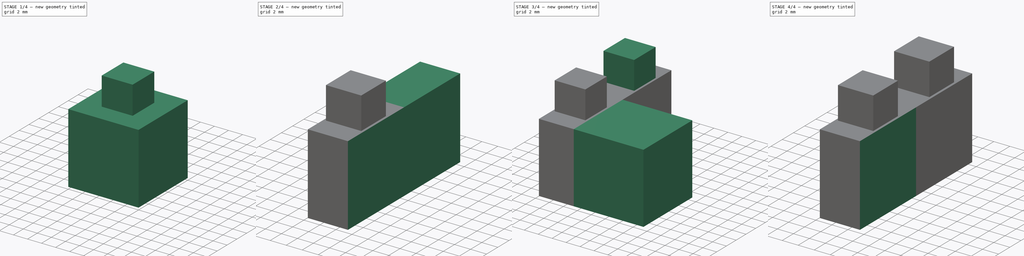
[diagram: build sequence overview — one tinted view per stage of 4, left to right]
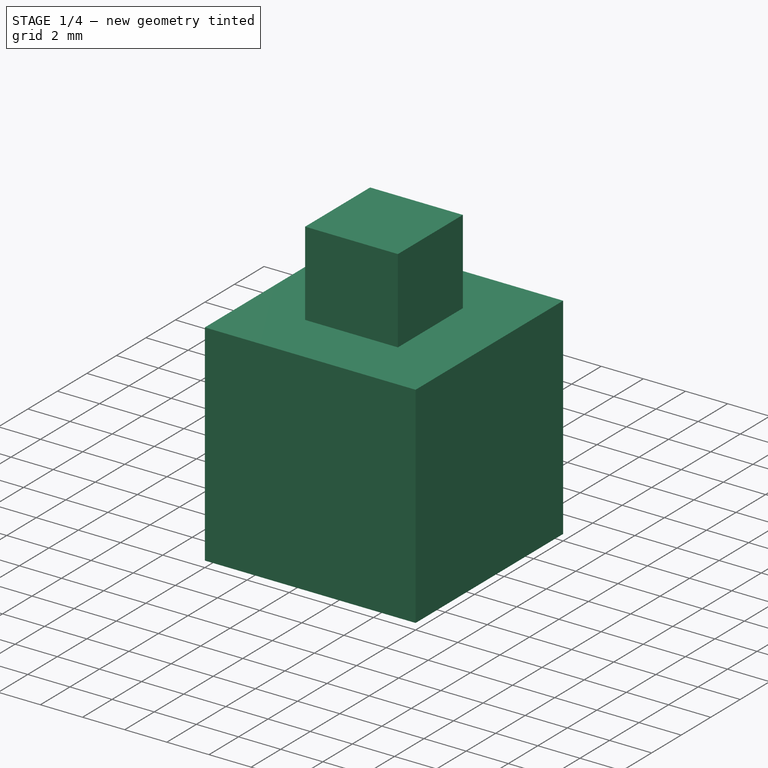
[diagram: stage 1 of 4 — iso view after this stage's code; geometry added in this stage tinted green]
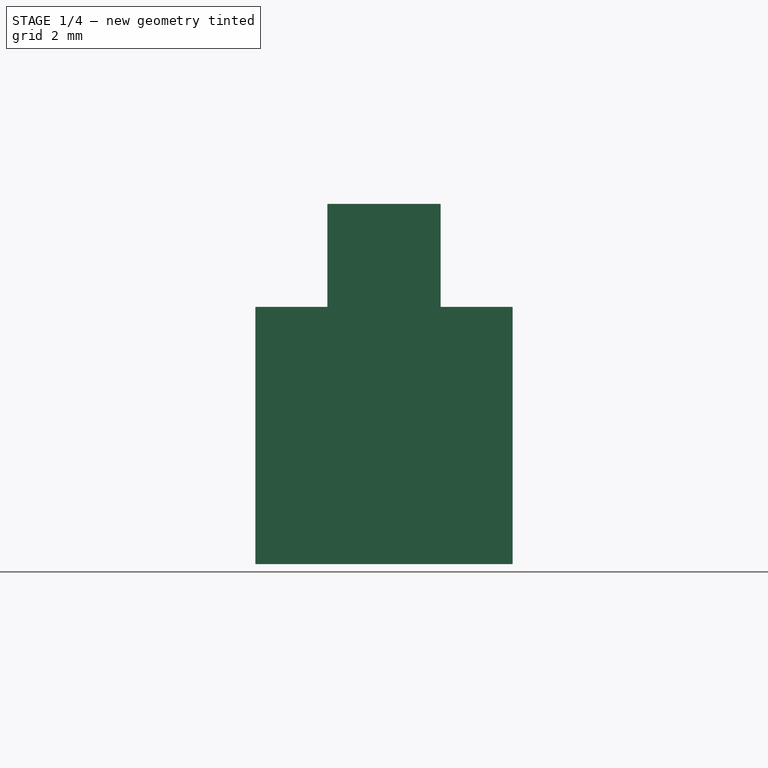
[diagram: stage 1 of 4 — front view after this stage's code; geometry added in this stage tinted green]
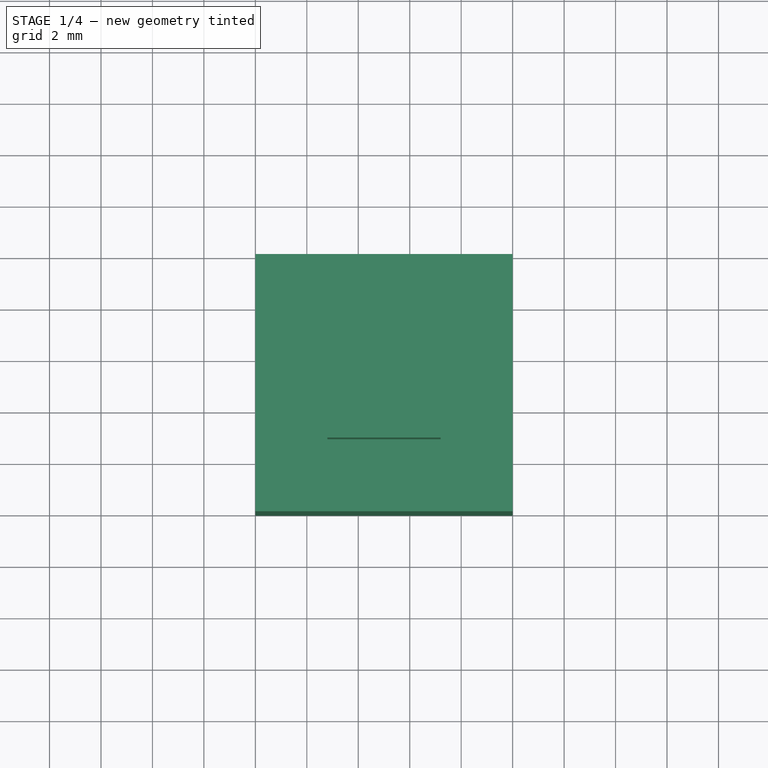
[diagram: stage 1 of 4 — top view after this stage's code; geometry added in this stage tinted green]
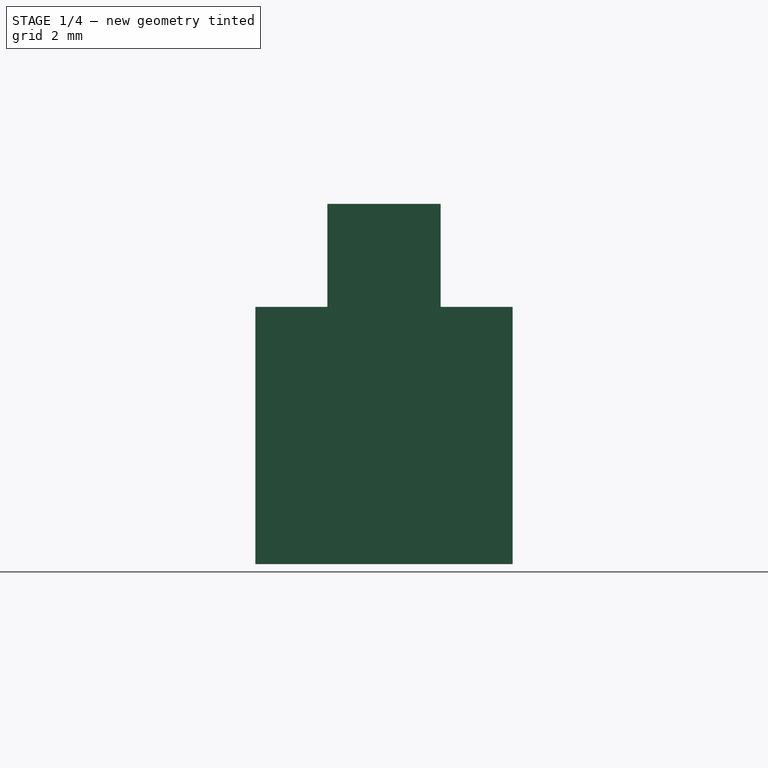
[diagram: stage 1 of 4 — right view after this stage's code; geometry added in this stage tinted green]
FCSTD DOCUMENT  (FreeCAD 0.18.4R)
Label: wall-block-2-pieces-v1
License: All rights reserved
LicenseURL: http://en.wikipedia.org/wiki/All_rights_reserved
objects: PartDesign::Pad×5, PartDesign::Pocket×4, Sketcher::SketchObject×2, Part::Box×1, PartDesign::FeatureBase×1, PartDesign::Body×1
note: 23 computed .brp shape members not serialized (recipe doc carries the construction recipe); baked Part::Feature solids carry a one-line shape summary decoded from their .brp

FEATURE [Part::Box] Box  label="Cube"
  AttacherType = Attacher::AttachEngine3D
  Height = 10
  Length = 10
  Width = 10
FEATURE [PartDesign::FeatureBase] BaseFeature
  BaseFeature = -> Box
FEATURE [Sketcher::SketchObject] Sketch
  MapMode = 5
  Placement = pos=(0,0,10) rot=(0,0,1;0rad)
  Support = -> [BaseFeature]
  sketch-geometry (4):
    g0: LineSegment StartX=2.8 StartY=2.8 StartZ=0 EndX=7.2 EndY=2.8 EndZ=0
    g1: LineSegment StartX=7.2 StartY=2.8 StartZ=0 EndX=7.2 EndY=7.2 EndZ=0
    g2: LineSegment StartX=7.2 StartY=7.2 StartZ=0 EndX=2.8 EndY=7.2 EndZ=0
    g3: LineSegment StartX=2.8 StartY=7.2 StartZ=0 EndX=2.8 EndY=2.8 EndZ=0
  constraints (12):
    c: Coincident(g0,g1)
    c: Coincident(g1,g2)
    c: Coincident(g2,g3)
    c: Coincident(g3,g0)
    c: Horizontal(g0)
    c: Horizontal(g2)
    c: Vertical(g1)
    c: Vertical(g3)
    c: DistanceX(g2,g2) = 4.4
    c: DistanceY(g3,g3) = 4.4
    c: DistanceX(g-1,g0) = 2.8
    c: DistanceY(g-1,g0) = 2.8
FEATURE [PartDesign::Pad] Pad
  BaseFeature = -> BaseFeature
  Length = 4
  Length2 = 100
  Profile = -> Sketch
  Type = 0
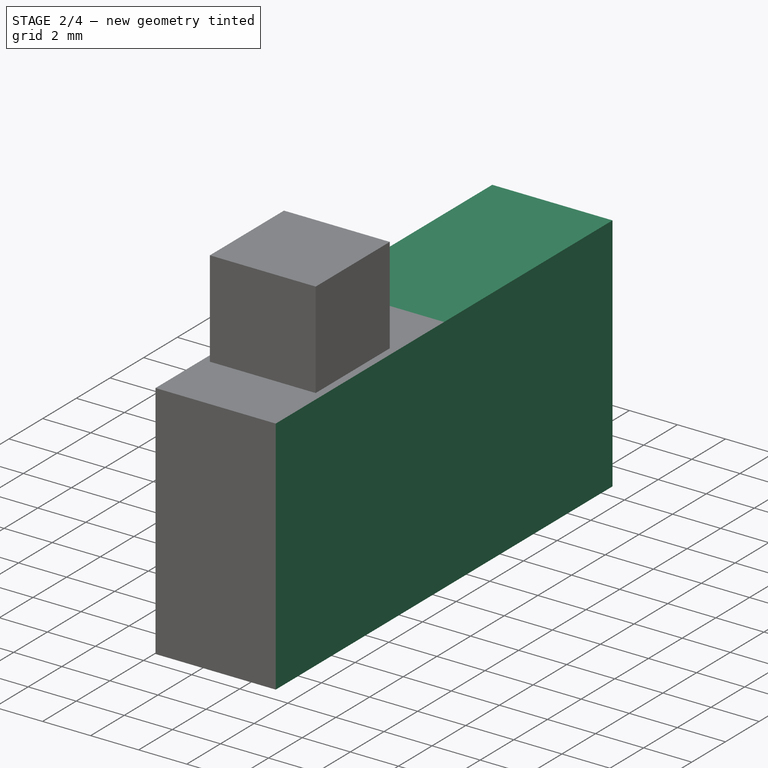
[diagram: stage 2 of 4 — iso view after this stage's code; geometry added in this stage tinted green]
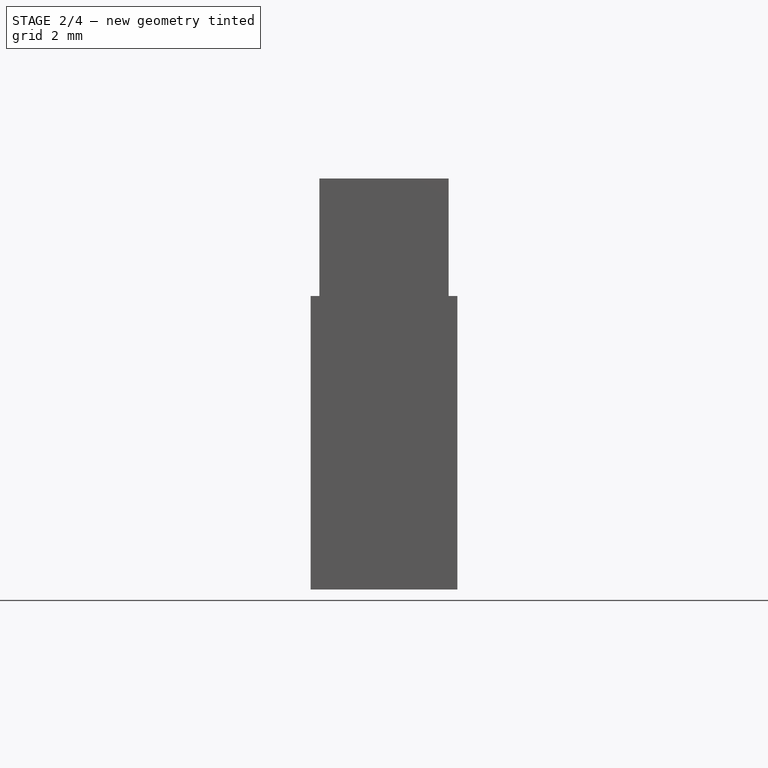
[diagram: stage 2 of 4 — front view after this stage's code; geometry added in this stage tinted green]
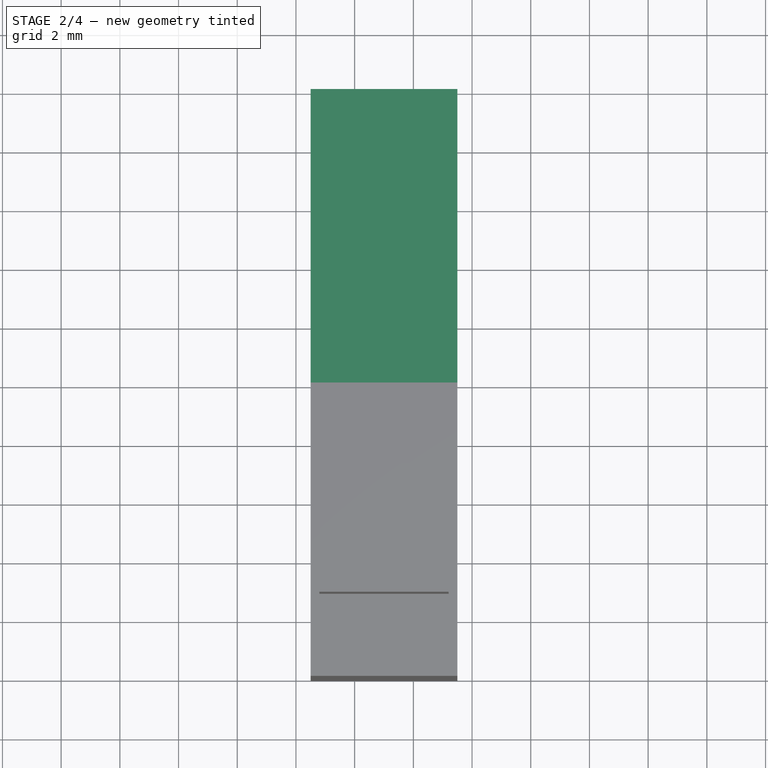
[diagram: stage 2 of 4 — top view after this stage's code; geometry added in this stage tinted green]
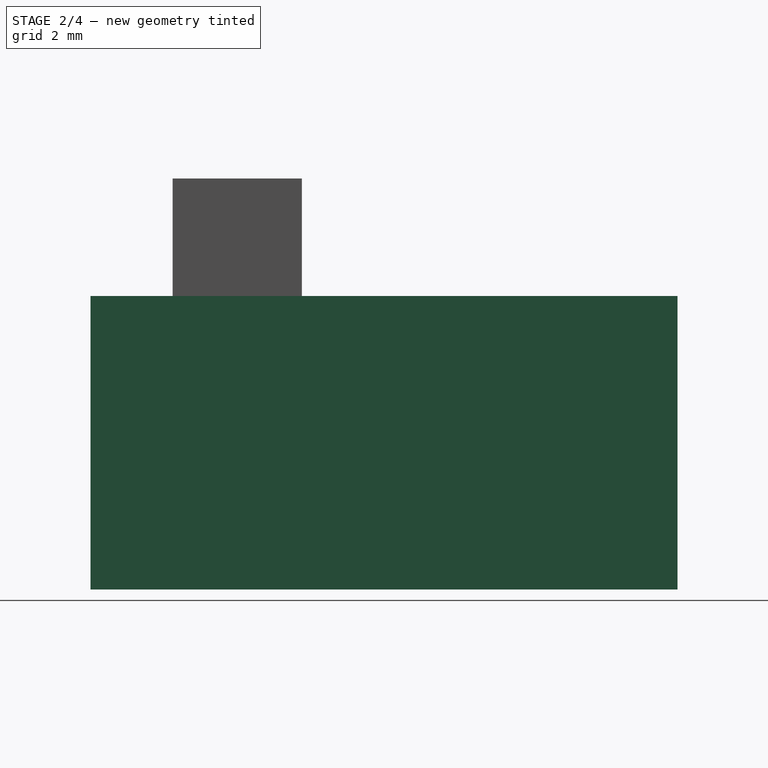
[diagram: stage 2 of 4 — right view after this stage's code; geometry added in this stage tinted green]
FEATURE [PartDesign::Pocket] Pocket
  BaseFeature = -> Pad
  Length = 2.5
  Length2 = 100
  Profile = -> Pad [Face1]
  Type = 0
FEATURE [PartDesign::Pocket] Pocket001
  BaseFeature = -> Pocket
  Length = 2.5
  Length2 = 100
  Profile = -> Pocket [Face3]
  Type = 0
FEATURE [PartDesign::Pad] Pad001
  BaseFeature = -> Pocket001
  Length = 10
  Length2 = 100
  Profile = -> Pocket001 [Face6]
  Type = 0
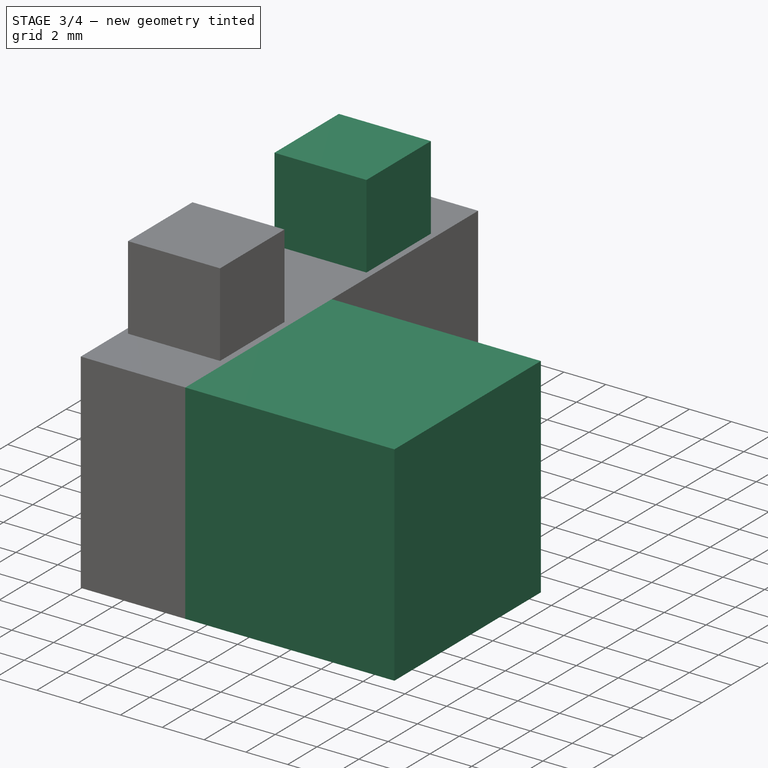
[diagram: stage 3 of 4 — iso view after this stage's code; geometry added in this stage tinted green]
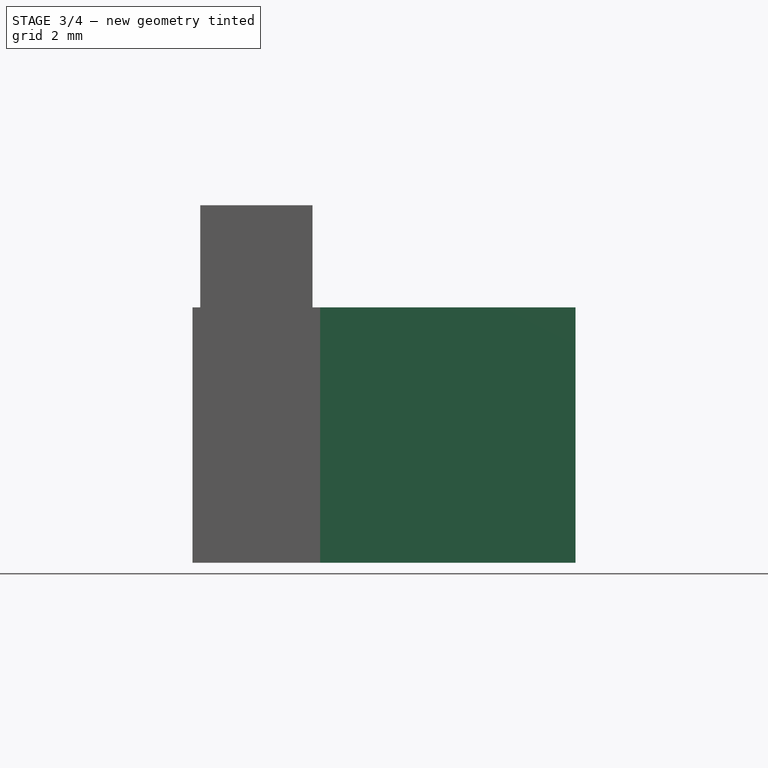
[diagram: stage 3 of 4 — front view after this stage's code; geometry added in this stage tinted green]
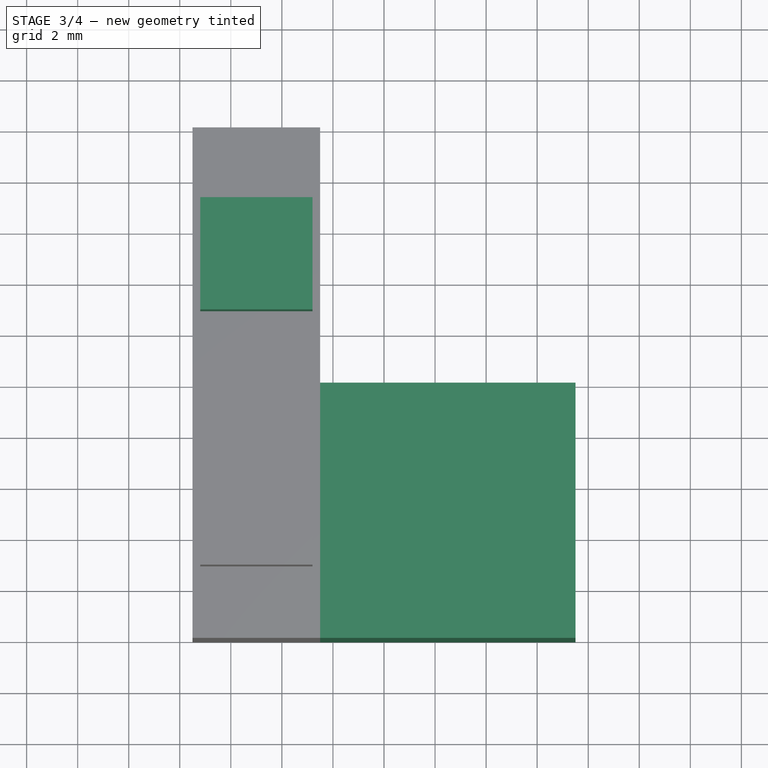
[diagram: stage 3 of 4 — top view after this stage's code; geometry added in this stage tinted green]
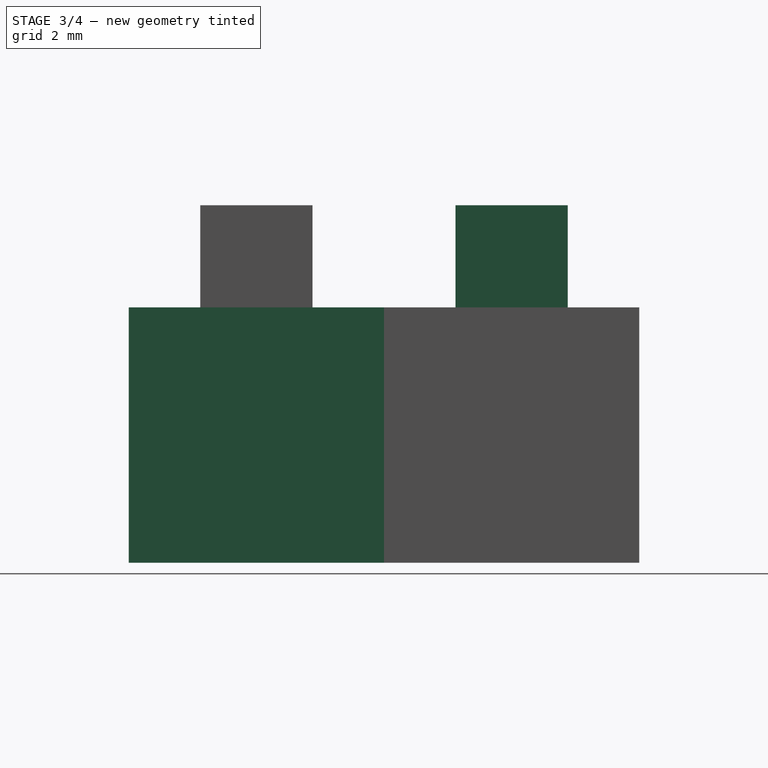
[diagram: stage 3 of 4 — right view after this stage's code; geometry added in this stage tinted green]
FEATURE [Sketcher::SketchObject] Sketch001
  ExternalGeometry = -> [Pad001]
  MapMode = 5
  Placement = pos=(0,0,10) rot=(0,0,1;0rad)
  Support = -> [Pad001]
  sketch-geometry (4):
    g0: LineSegment StartX=2.8 StartY=17.2 StartZ=0 EndX=7.2 EndY=17.2 EndZ=0
    g1: LineSegment StartX=7.2 StartY=17.2 StartZ=0 EndX=7.2 EndY=12.8 EndZ=0
    g2: LineSegment StartX=7.2 StartY=12.8 StartZ=0 EndX=2.8 EndY=12.8 EndZ=0
    g3: LineSegment StartX=2.8 StartY=12.8 StartZ=0 EndX=2.8 EndY=17.2 EndZ=0
  constraints (12):
    c: Coincident(g0,g1)
    c: Coincident(g1,g2)
    c: Coincident(g2,g3)
    c: Coincident(g3,g0)
    c: Horizontal(g0)
    c: Horizontal(g2)
    c: Vertical(g1)
    c: Vertical(g3)
    c: DistanceX(g0,g-3) = 0.3
    c: DistanceX(g-3,g0) = 0.3
    c: DistanceY(g3,g3) = 4.4
    c: DistanceY(g-4,g1) = 2.8
FEATURE [PartDesign::Pad] Pad002
  BaseFeature = -> Pad001
  Length = 4
  Length2 = 100
  Profile = -> Sketch001
  Type = 0
FEATURE [PartDesign::Pad] Pad003
  BaseFeature = -> Pad002
  Length = 10
  Length2 = 100
  Profile = -> Pad002 [Face3]
  Type = 0
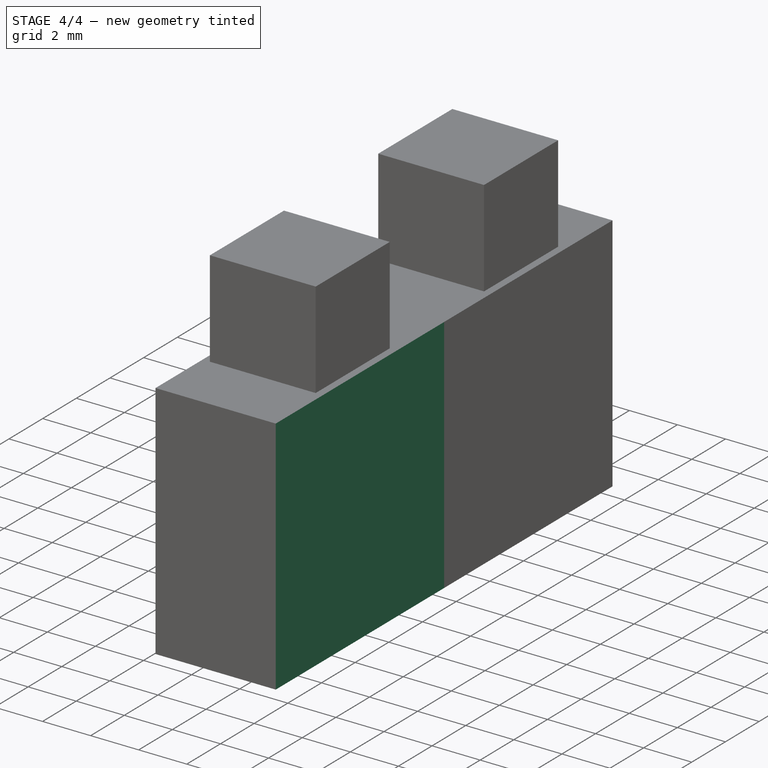
[diagram: stage 4 of 4 — iso view after this stage's code; geometry added in this stage tinted green]
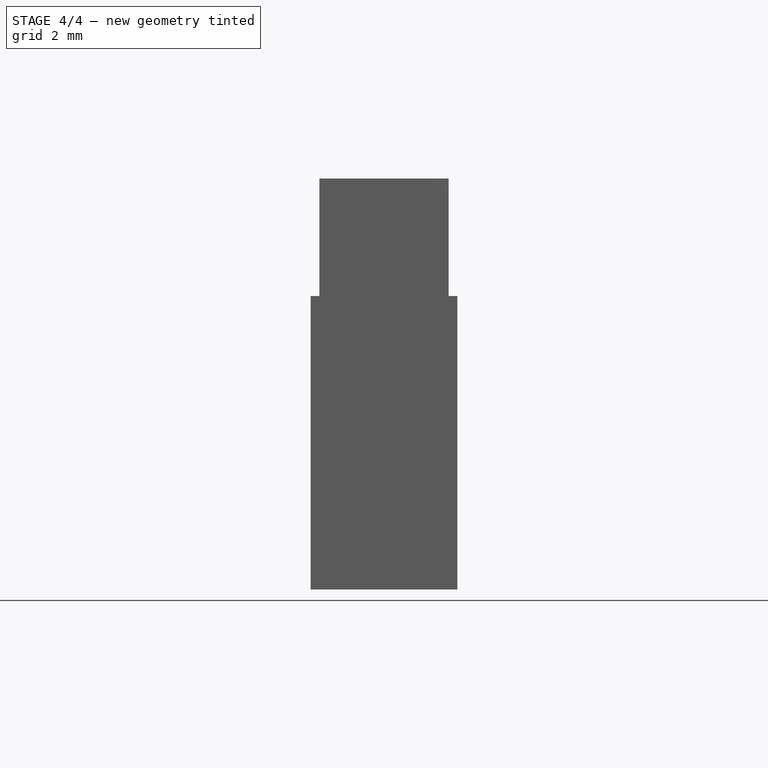
[diagram: stage 4 of 4 — front view after this stage's code; geometry added in this stage tinted green]
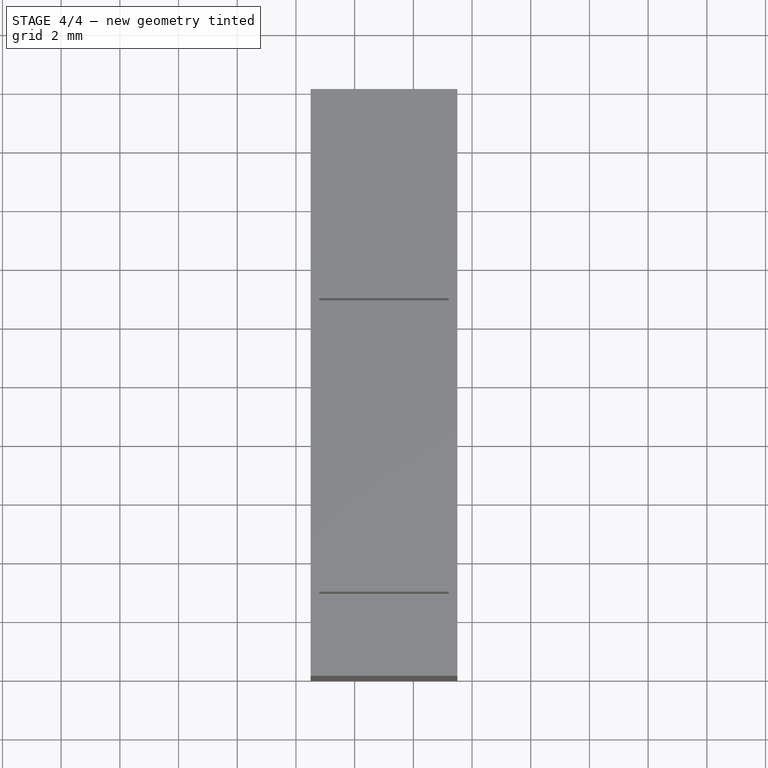
[diagram: stage 4 of 4 — top view after this stage's code; geometry added in this stage tinted green]
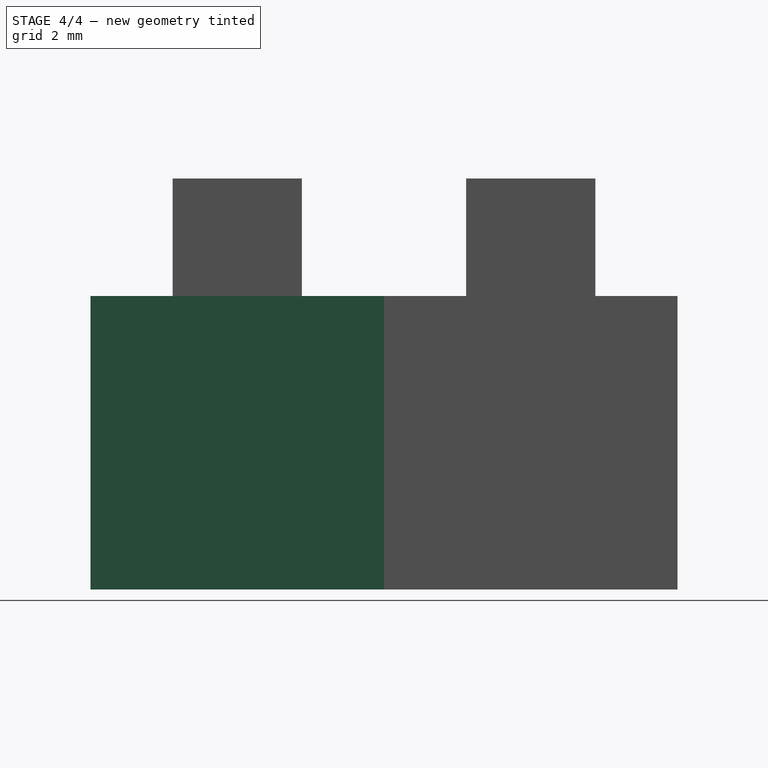
[diagram: stage 4 of 4 — right view after this stage's code; geometry added in this stage tinted green]
FEATURE [PartDesign::Pad] Pad004
  BaseFeature = -> Pad003
  Length = 10
  Length2 = 100
  Profile = -> Pad003 [Face16]
  Type = 0
FEATURE [PartDesign::Pocket] Pocket002
  BaseFeature = -> Pad004
  Length = 10
  Length2 = 100
  Profile = -> Pad004 [Face19]
  Type = 0
FEATURE [PartDesign::Pocket] Pocket003
  BaseFeature = -> Pocket002
  Length = 10
  Length2 = 100
  Profile = -> Pocket002 [Face9]
  Type = 0
FEATURE [PartDesign::Body] Body
  BaseFeature = -> Box
  Group = -> [BaseFeature,Sketch,Pad,Pocket,Pocket001,Pad001,Sketch001,Pad002,Pad003,Pad004,Pocket002,Pocket003]
  Origin = -> Origin
  Tip = -> Pocket003
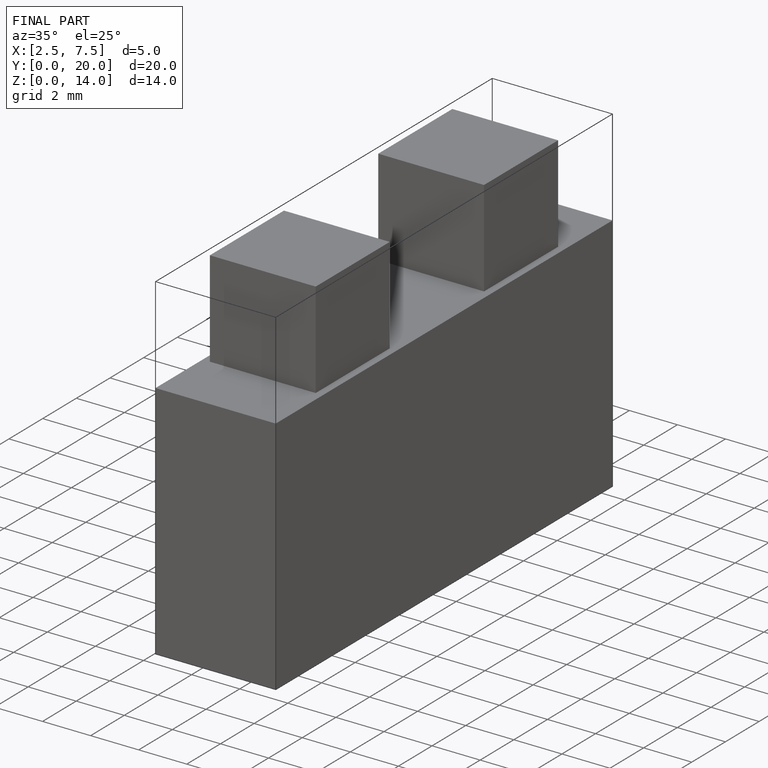
[diagram: finished part — iso view with bounding-box wireframe]
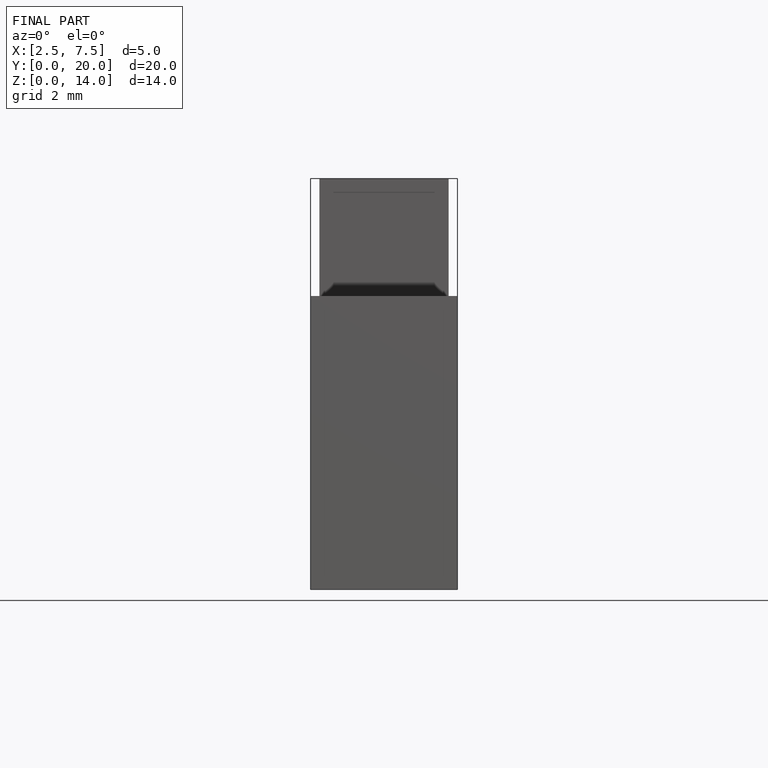
[diagram: finished part — front view with bounding-box wireframe]
